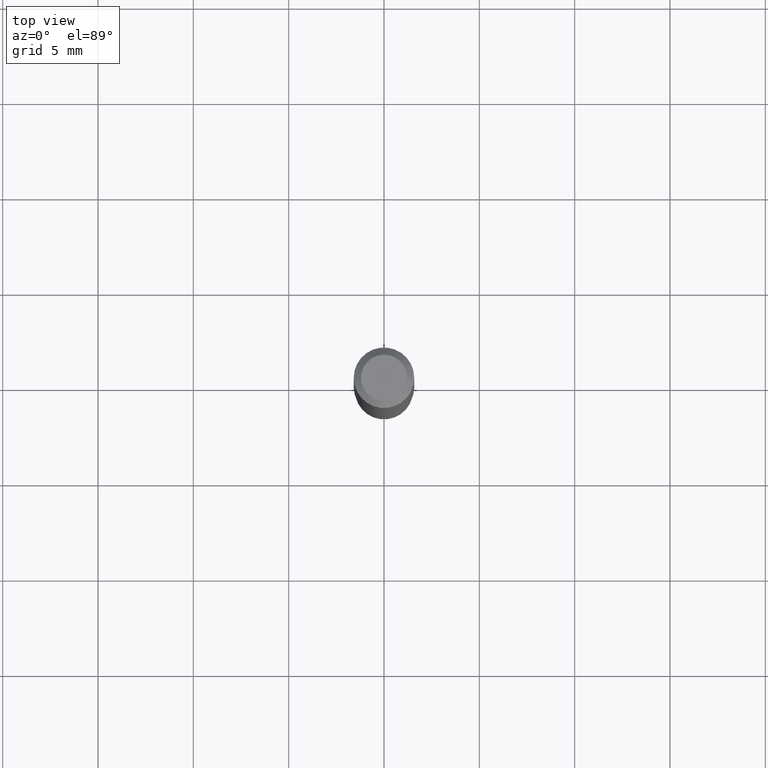
[diagram: clean part render]
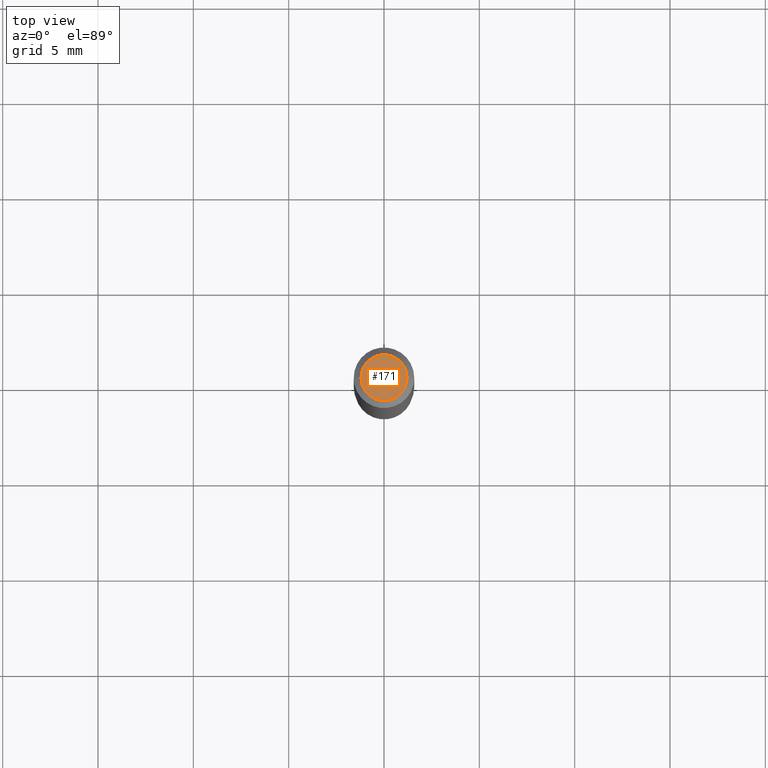
[diagram: same view with one face highlighted and labeled with its STEP entity id]
A machine part, top view. The second image highlights one B-rep face of the part: STEP entity #171.
In plain terms, the highlighted planar face has unit normal (0, -0, -1).
Its self-contained STEP definition (entity closure, byte-faithful):
#25 = PLANE ( 'NONE',  #436 ) ;
#37 = EDGE_CURVE ( 'NONE', #229, #309, #459, .T. ) ;
#47 = DIRECTION ( 'NONE',  ( 1.000000000000000000, -6.982962677686267499E-15, 4.852736867747366768E-29 ) ) ;
#72 = CARTESIAN_POINT ( 'NONE',  ( 0.04749999999999999362, -4.035134999187581581E-16, -1.989643822619502098E-16 ) ) ;
#101 = CARTESIAN_POINT ( 'NONE',  ( 3.316907271900976096E-16, 0.04749999999999999362, -2.653275547260257586E-16 ) ) ;
#135 = DIRECTION ( 'NONE',  ( -2.445468806185136597E-29, 3.491481338843145583E-15, 1.000000000000000000 ) ) ;
#144 = AXIS2_PLACEMENT_3D ( 'NONE', #256, #275, #422 ) ;
#157 = CIRCLE ( 'NONE', #144, 0.04749999999999999362 ) ;
#158 = ORIENTED_EDGE ( 'NONE', *, *, #37, .T. ) ;
#171 = ADVANCED_FACE ( 'NONE', ( #460 ), #25, .F. ) ;
#194 = CARTESIAN_POINT ( 'NONE',  ( -0.04749999999999999362, 3.578768372314206562E-16, -1.989643822619551895E-16 ) ) ;
#211 = DIRECTION ( 'NONE',  ( 2.438088387897960049E-29, -3.491481338843145188E-15, -1.000000000000000000 ) ) ;
#229 = VERTEX_POINT ( 'NONE', #72 ) ;
#245 = EDGE_LOOP ( 'NONE', ( #303, #158 ) ) ;
#256 = CARTESIAN_POINT ( 'NONE',  ( 4.865611903635008365E-45, -6.946804277620623666E-31, -1.989643822619527736E-16 ) ) ;
#275 = DIRECTION ( 'NONE',  ( -2.445468806185136597E-29, 3.491481338843145583E-15, 1.000000000000000000 ) ) ;
#281 = AXIS2_PLACEMENT_3D ( 'NONE', #342, #135, #47 ) ;
#303 = ORIENTED_EDGE ( 'NONE', *, *, #385, .T. ) ;
#309 = VERTEX_POINT ( 'NONE', #194 ) ;
#342 = CARTESIAN_POINT ( 'NONE',  ( 4.865611903635008365E-45, -6.946804277620623666E-31, -1.989643822619527736E-16 ) ) ;
#385 = EDGE_CURVE ( 'NONE', #309, #229, #157, .T. ) ;
#422 = DIRECTION ( 'NONE',  ( 1.000000000000000000, -6.982962677686267499E-15, 4.852736867747366768E-29 ) ) ;
#426 = DIRECTION ( 'NONE',  ( -1.000000000000000000, 6.982962677686265922E-15, -4.876176775795935793E-29 ) ) ;
#436 = AXIS2_PLACEMENT_3D ( 'NONE', #101, #211, #426 ) ;
#459 = CIRCLE ( 'NONE', #281, 0.04749999999999999362 ) ;
#460 = FACE_OUTER_BOUND ( 'NONE', #245, .T. ) ;